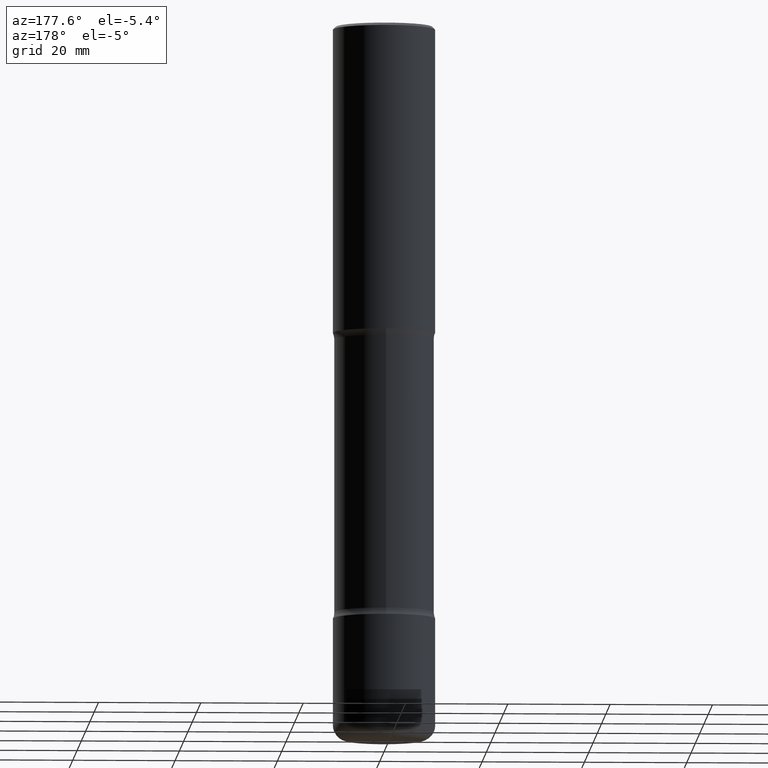
[diagram: clean part render]
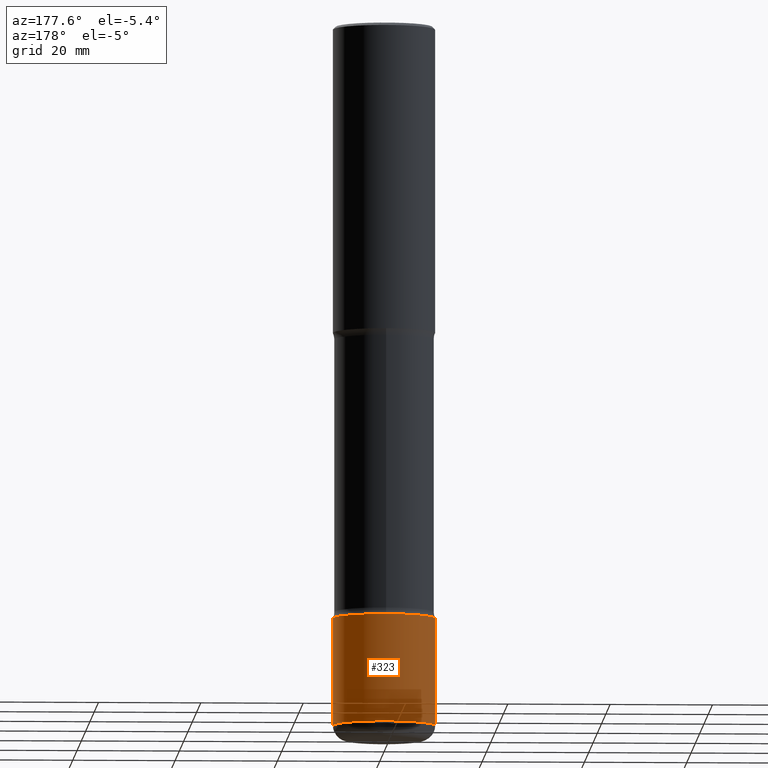
[diagram: same view with one face highlighted and labeled with its STEP entity id]
A machine part, auxiliary view. The second image highlights one B-rep face of the part: STEP entity #323.
In plain terms, the highlighted cylindrical surface (partial cylindrical patch) has radius 10 mm, axis along (-0, 0, 1).
Its self-contained STEP definition (entity closure, byte-faithful):
#40 = CIRCLE ( 'NONE', #445, 0.3937000000000003830 ) ;
#49 = EDGE_LOOP ( 'NONE', ( #398, #471, #455, #285 ) ) ;
#55 = CYLINDRICAL_SURFACE ( 'NONE', #261, 0.3937000000000004385 ) ;
#59 = AXIS2_PLACEMENT_3D ( 'NONE', #265, #224, #103 ) ;
#68 = DIRECTION ( 'NONE',  ( -2.445468806185136877E-29, 3.491481338843145188E-15, 1.000000000000000000 ) ) ;
#74 = CARTESIAN_POINT ( 'NONE',  ( 0.3937000000000002164, -2.158119530352336260E-14, -5.393700000000000827 ) ) ;
#89 = VERTEX_POINT ( 'NONE', #454 ) ;
#103 = DIRECTION ( 'NONE',  ( 1.000000000000000000, -6.982962677686269866E-15, 0.000000000000000000 ) ) ;
#112 = VERTEX_POINT ( 'NONE', #74 ) ;
#126 = EDGE_CURVE ( 'NONE', #112, #89, #552, .T. ) ;
#153 = VECTOR ( 'NONE', #294, 39.37007874015748143 ) ;
#170 = VERTEX_POINT ( 'NONE', #196 ) ;
#179 = CARTESIAN_POINT ( 'NONE',  ( 0.000000000000000000, 0.000000000000000000, 0.000000000000000000 ) ) ;
#189 = DIRECTION ( 'NONE',  ( 1.000000000000000000, -6.982962677686261977E-15, 0.000000000000000000 ) ) ;
#196 = CARTESIAN_POINT ( 'NONE',  ( -0.3937000000000002164, -1.603459614663076223E-14, -5.393700000000000827 ) ) ;
#221 = FACE_OUTER_BOUND ( 'NONE', #49, .T. ) ;
#224 = DIRECTION ( 'NONE',  ( -2.445468806185136597E-29, 3.491481338843145583E-15, 1.000000000000000000 ) ) ;
#229 = EDGE_CURVE ( 'NONE', #170, #389, #337, .T. ) ;
#261 = AXIS2_PLACEMENT_3D ( 'NONE', #179, #313, #444 ) ;
#265 = CARTESIAN_POINT ( 'NONE',  ( 1.319012509992077371E-28, -1.883200289731827938E-14, -5.393700000000000827 ) ) ;
#282 = CARTESIAN_POINT ( 'NONE',  ( 0.3937000000000004385, -2.749192406205086372E-15, 1.919750796630862133E-29 ) ) ;
#285 = ORIENTED_EDGE ( 'NONE', *, *, #126, .F. ) ;
#294 = DIRECTION ( 'NONE',  ( -2.445468806185136877E-29, 3.491481338843145188E-15, 1.000000000000000000 ) ) ;
#313 = DIRECTION ( 'NONE',  ( -2.445468806185136597E-29, 3.491481338843145583E-15, 1.000000000000000000 ) ) ;
#323 = ADVANCED_FACE ( 'NONE', ( #221 ), #55, .T. ) ;
#337 = LINE ( 'NONE', #394, #153 ) ;
#352 = EDGE_CURVE ( 'NONE', #112, #170, #461, .T. ) ;
#376 = EDGE_CURVE ( 'NONE', #89, #389, #40, .T. ) ;
#379 = VECTOR ( 'NONE', #68, 39.37007874015748143 ) ;
#389 = VERTEX_POINT ( 'NONE', #531 ) ;
#394 = CARTESIAN_POINT ( 'NONE',  ( -0.3937000000000004385, 2.797406750687517547E-15, -1.936584745033358417E-29 ) ) ;
#398 = ORIENTED_EDGE ( 'NONE', *, *, #352, .T. ) ;
#400 = CARTESIAN_POINT ( 'NONE',  ( 1.116821149096690103E-28, -1.594524612636276117E-14, -4.566900000000000404 ) ) ;
#407 = DIRECTION ( 'NONE',  ( -2.445468806185136597E-29, 3.491481338843145583E-15, 1.000000000000000000 ) ) ;
#444 = DIRECTION ( 'NONE',  ( 1.000000000000000000, -6.982962677686266711E-15, 4.876176775795935793E-29 ) ) ;
#445 = AXIS2_PLACEMENT_3D ( 'NONE', #400, #407, #189 ) ;
#454 = CARTESIAN_POINT ( 'NONE',  ( 0.3937000000000003830, -1.869443853256784755E-14, -4.566900000000000404 ) ) ;
#455 = ORIENTED_EDGE ( 'NONE', *, *, #376, .F. ) ;
#461 = CIRCLE ( 'NONE', #59, 0.3937000000000004940 ) ;
#471 = ORIENTED_EDGE ( 'NONE', *, *, #229, .T. ) ;
#531 = CARTESIAN_POINT ( 'NONE',  ( -0.3937000000000003830, -1.459121776115300155E-14, -4.566900000000000404 ) ) ;
#552 = LINE ( 'NONE', #282, #379 ) ;